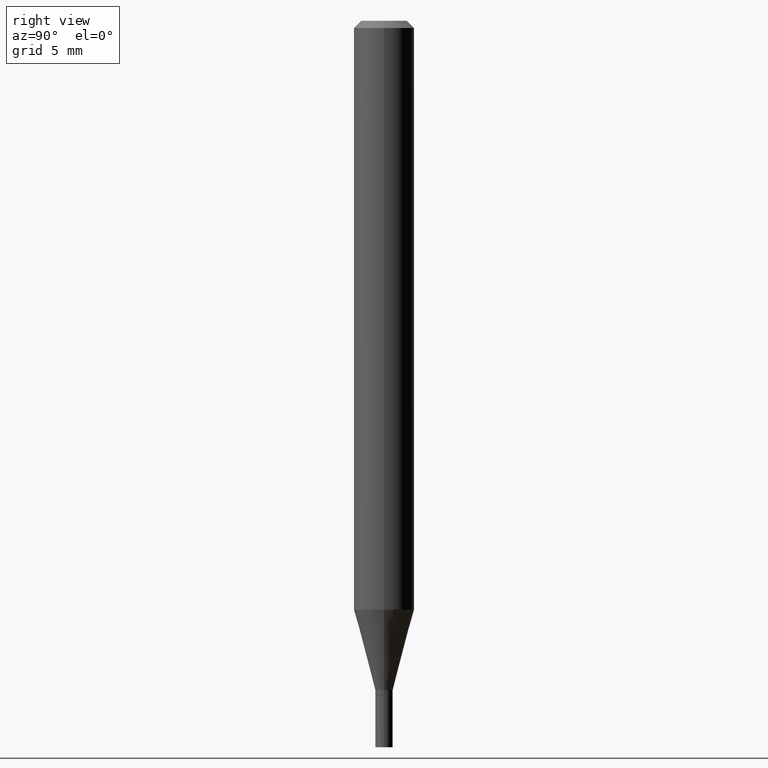
[diagram: clean part render]
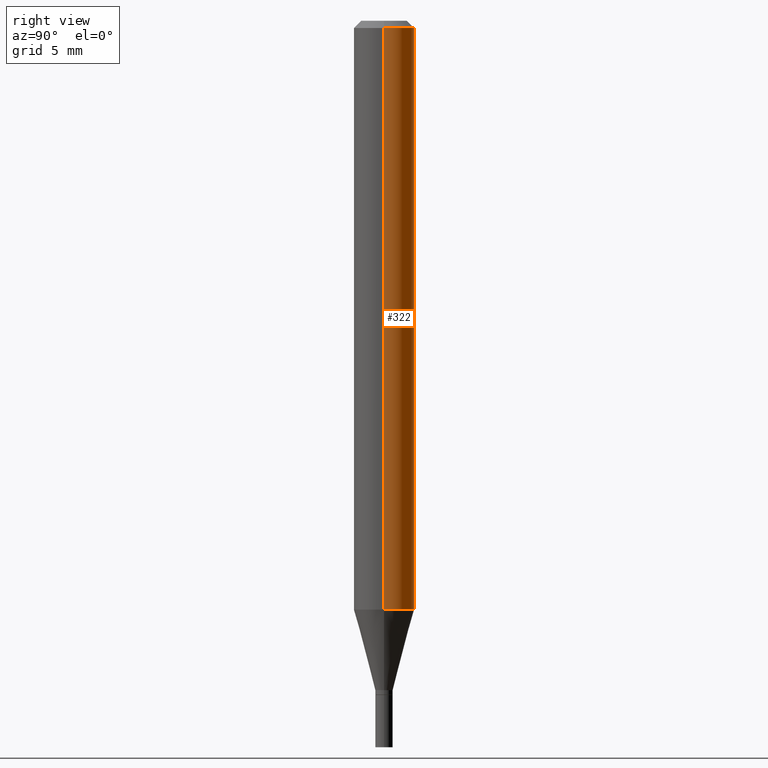
[diagram: same view with one face highlighted and labeled with its STEP entity id]
A machine part, right view. The second image highlights one B-rep face of the part: STEP entity #322.
In plain terms, the highlighted cylindrical surface (edge-blend (fillet) strip) has radius 1.5875 mm, axis along (-0, 0, 1).
Its self-contained STEP definition (entity closure, byte-faithful):
#5 = CARTESIAN_POINT ( 'NONE',  ( 3.668203209277705088E-31, -5.237222008264718399E-17, -0.01499999999999999944 ) ) ;
#7 = CARTESIAN_POINT ( 'NONE',  ( -0.06250000000000001388, -3.801285834545430586E-15, -1.215923739063185183 ) ) ;
#11 = VERTEX_POINT ( 'NONE', #122 ) ;
#35 = CIRCLE ( 'NONE', #249, 0.06250000000000000000 ) ;
#39 = CYLINDRICAL_SURFACE ( 'NONE', #193, 0.06250000000000000000 ) ;
#83 = CARTESIAN_POINT ( 'NONE',  ( 0.000000000000000000, 0.000000000000000000, 0.000000000000000000 ) ) ;
#92 = CARTESIAN_POINT ( 'NONE',  ( -0.06250000000000000000, 4.440892098500626162E-16, -3.074334431409316114E-30 ) ) ;
#104 = CARTESIAN_POINT ( 'NONE',  ( -0.06250000000000000000, -1.704784422389007524E-15, -0.01499999999999999944 ) ) ;
#105 = EDGE_LOOP ( 'NONE', ( #432, #196, #434, #262 ) ) ;
#122 = CARTESIAN_POINT ( 'NONE',  ( 0.06250000000000001388, -4.681810211750884871E-15, -1.215923739063185183 ) ) ;
#124 = VERTEX_POINT ( 'NONE', #241 ) ;
#136 = EDGE_CURVE ( 'NONE', #260, #295, #458, .T. ) ;
#141 = DIRECTION ( 'NONE',  ( -2.445468806185136597E-29, 3.491481338843145583E-15, 1.000000000000000000 ) ) ;
#167 = VECTOR ( 'NONE', #390, 39.37007874015748143 ) ;
#168 = LINE ( 'NONE', #280, #214 ) ;
#193 = AXIS2_PLACEMENT_3D ( 'NONE', #83, #300, #302 ) ;
#196 = ORIENTED_EDGE ( 'NONE', *, *, #136, .T. ) ;
#214 = VECTOR ( 'NONE', #454, 39.37007874015748143 ) ;
#215 = CARTESIAN_POINT ( 'NONE',  ( 2.973503574579014958E-29, -4.245375044395493202E-15, -1.215923739063185183 ) ) ;
#236 = EDGE_CURVE ( 'NONE', #11, #124, #168, .T. ) ;
#241 = CARTESIAN_POINT ( 'NONE',  ( 0.06250000000000000000, -4.888073874380388472E-16, -0.01499999999999999944 ) ) ;
#248 = DIRECTION ( 'NONE',  ( 1.000000000000000000, -6.982962677686270655E-15, 0.000000000000000000 ) ) ;
#249 = AXIS2_PLACEMENT_3D ( 'NONE', #215, #286, #248 ) ;
#260 = VERTEX_POINT ( 'NONE', #7 ) ;
#262 = ORIENTED_EDGE ( 'NONE', *, *, #236, .F. ) ;
#280 = CARTESIAN_POINT ( 'NONE',  ( 0.06250000000000000000, -4.364351673553916694E-16, 3.047610484872459871E-30 ) ) ;
#286 = DIRECTION ( 'NONE',  ( -2.445468806185136597E-29, 3.491481338843145583E-15, 1.000000000000000000 ) ) ;
#295 = VERTEX_POINT ( 'NONE', #104 ) ;
#300 = DIRECTION ( 'NONE',  ( -2.445468806185136597E-29, 3.491481338843145583E-15, 1.000000000000000000 ) ) ;
#302 = DIRECTION ( 'NONE',  ( 1.000000000000000000, -6.982962677686266711E-15, 4.876176775795935793E-29 ) ) ;
#322 = ADVANCED_FACE ( 'NONE', ( #409 ), #39, .T. ) ;
#338 = AXIS2_PLACEMENT_3D ( 'NONE', #5, #141, #362 ) ;
#362 = DIRECTION ( 'NONE',  ( 1.000000000000000000, -6.982962677686266711E-15, 0.000000000000000000 ) ) ;
#365 = EDGE_CURVE ( 'NONE', #124, #295, #452, .T. ) ;
#387 = EDGE_CURVE ( 'NONE', #11, #260, #35, .T. ) ;
#390 = DIRECTION ( 'NONE',  ( -2.445468806185136877E-29, 3.491481338843145188E-15, 1.000000000000000000 ) ) ;
#409 = FACE_OUTER_BOUND ( 'NONE', #105, .T. ) ;
#432 = ORIENTED_EDGE ( 'NONE', *, *, #387, .T. ) ;
#434 = ORIENTED_EDGE ( 'NONE', *, *, #365, .F. ) ;
#452 = CIRCLE ( 'NONE', #338, 0.06250000000000000000 ) ;
#454 = DIRECTION ( 'NONE',  ( -2.445468806185136877E-29, 3.491481338843145188E-15, 1.000000000000000000 ) ) ;
#458 = LINE ( 'NONE', #92, #167 ) ;